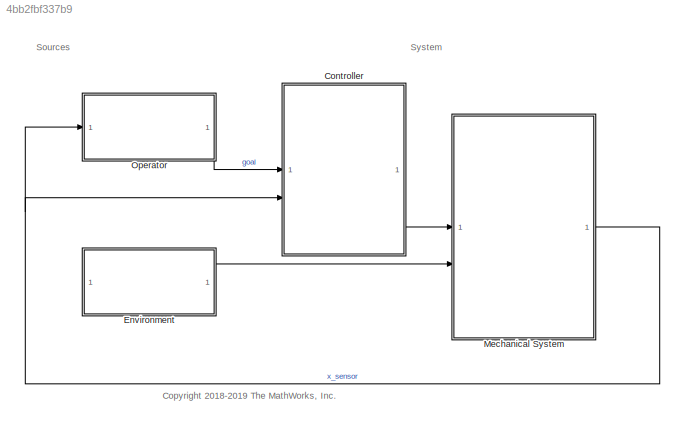
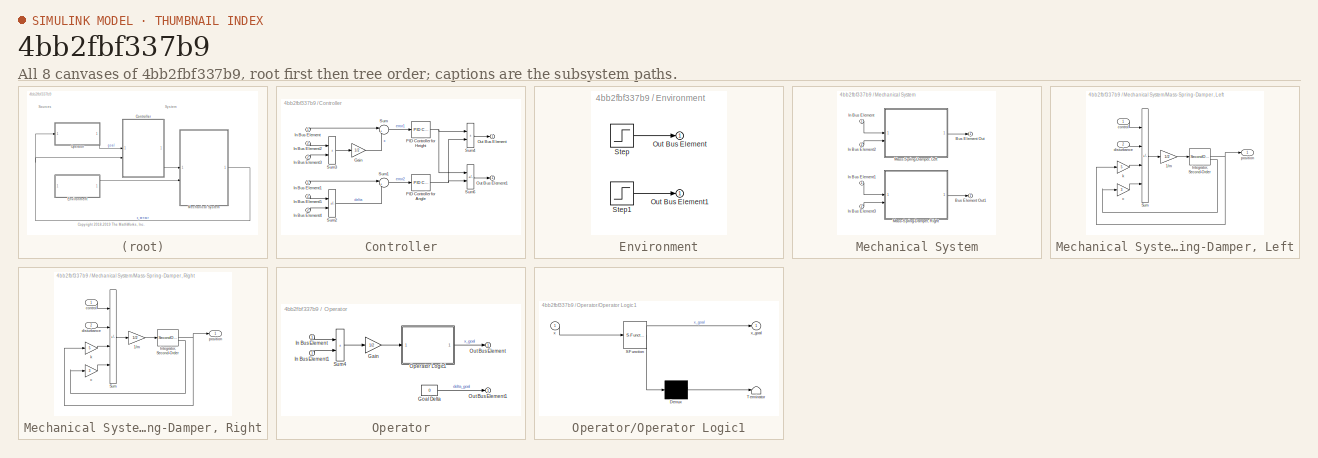
[diagram: thumbnail index - all 8 canvases of the model, root first then tree order]
MODEL slx_4bb2fbf337b9
KIND model
CONFIG AbsTol = auto
CONFIG EnableMultiTasking = off
CONFIG FixedStep = auto
CONFIG MaxStep = auto
CONFIG MinStep = auto
CONFIG RelTol = 1e-3
CONFIG SampleTimeConstraint = Unconstrained
CONFIG SolverName = VariableStepAuto
CONFIG StartTime = 0.0
CONFIG StopTime = 30
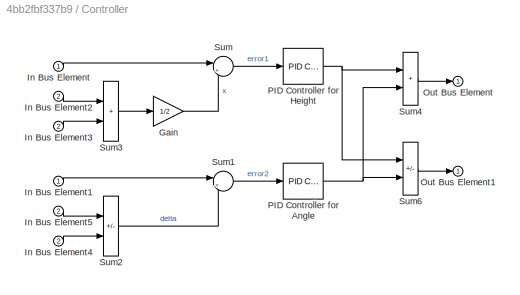
BLOCK [SubSystem] Controller
  TreatAsAtomicUnit = on
BLOCK [Gain] Controller/Gain
  Gain = 1/2
BLOCK [Inport] Controller/In Bus Element
BLOCK [Inport] Controller/In Bus Element1
BLOCK [Inport] Controller/In Bus Element2
  Port = 2
BLOCK [Inport] Controller/In Bus Element3
  Port = 2
BLOCK [Inport] Controller/In Bus Element4
  Port = 2
BLOCK [Inport] Controller/In Bus Element5
  Port = 2
BLOCK [Outport] Controller/Out Bus Element
BLOCK [Outport] Controller/Out Bus Element1
BLOCK [Reference] Controller/PID Controller for Angle  REF=slpidlib/PID Controller
  SourceBlock = slpidlib/PID Controller
  SourceType = PID 1dof
BLOCK [Reference] Controller/PID Controller for Height  REF=slpidlib/PID Controller
  SourceBlock = slpidlib/PID Controller
  SourceType = PID 1dof
BLOCK [Sum] Controller/Sum
  Inputs = |+-
BLOCK [Sum] Controller/Sum1
  Inputs = |+-
BLOCK [Sum] Controller/Sum2
  IconShape = rectangular
  Inputs = +-
BLOCK [Sum] Controller/Sum3
  IconShape = rectangular
BLOCK [Sum] Controller/Sum4
  IconShape = rectangular
BLOCK [Sum] Controller/Sum6
  IconShape = rectangular
  Inputs = +-
BLOCK [SubSystem] Environment
BLOCK [Outport] Environment/Out Bus Element
  VectorParamsAs1DForOutWhenUnconnected = off
BLOCK [Outport] Environment/Out Bus Element1
  VectorParamsAs1DForOutWhenUnconnected = off
BLOCK [Step] Environment/Step
  After = 10
  SampleTime = 0
  Time = 10
BLOCK [Step] Environment/Step1
  After = 10
  SampleTime = 0
  Time = 20
BLOCK [SubSystem] Mechanical System
BLOCK [Outport] Mechanical System/Bus Element Out
  VectorParamsAs1DForOutWhenUnconnected = off
BLOCK [Outport] Mechanical System/Bus Element Out1
  VectorParamsAs1DForOutWhenUnconnected = off
BLOCK [Inport] Mechanical System/In Bus Element
BLOCK [Inport] Mechanical System/In Bus Element1
BLOCK [Inport] Mechanical System/In Bus Element2
  Port = 2
BLOCK [Inport] Mechanical System/In Bus Element3
  Port = 2
BLOCK [SubSystem] Mechanical System/Mass-Spring-Damper, Left
BLOCK [Gain] Mechanical System/Mass-Spring-Damper, Left/1//m
  Gain = 1/2
BLOCK [SecondOrderIntegrator] Mechanical System/Mass-Spring-Damper, Left/Integrator, Second-Order
BLOCK [Sum] Mechanical System/Mass-Spring-Damper, Left/Sum
  IconShape = rectangular
  Inputs = ++--
BLOCK [Gain] Mechanical System/Mass-Spring-Damper, Left/c
  Gain = 3
BLOCK [Inport] Mechanical System/Mass-Spring-Damper, Left/control
BLOCK [Inport] Mechanical System/Mass-Spring-Damper, Left/disturbance
  Port = 2
BLOCK [Gain] Mechanical System/Mass-Spring-Damper, Left/k
  Gain = 5
BLOCK [Outport] Mechanical System/Mass-Spring-Damper, Left/position
  VectorParamsAs1DForOutWhenUnconnected = off
BLOCK [SubSystem] Mechanical System/Mass-Spring-Damper, Right
BLOCK [Gain] Mechanical System/Mass-Spring-Damper, Right/1//m
  Gain = 1/2
BLOCK [SecondOrderIntegrator] Mechanical System/Mass-Spring-Damper, Right/Integrator, Second-Order
BLOCK [Sum] Mechanical System/Mass-Spring-Damper, Right/Sum
  IconShape = rectangular
  Inputs = ++--
BLOCK [Gain] Mechanical System/Mass-Spring-Damper, Right/c
  Gain = 3
BLOCK [Inport] Mechanical System/Mass-Spring-Damper, Right/control
BLOCK [Inport] Mechanical System/Mass-Spring-Damper, Right/disturbance
  Port = 2
BLOCK [Gain] Mechanical System/Mass-Spring-Damper, Right/k
  Gain = 5
BLOCK [Outport] Mechanical System/Mass-Spring-Damper, Right/position
  VectorParamsAs1DForOutWhenUnconnected = off
BLOCK [SubSystem] Operator
BLOCK [Gain] Operator/Gain
  Gain = 1/2
BLOCK [Constant] Operator/Goal Delta
  Value = 0
BLOCK [Inport] Operator/In Bus Element
BLOCK [Inport] Operator/In Bus Element1
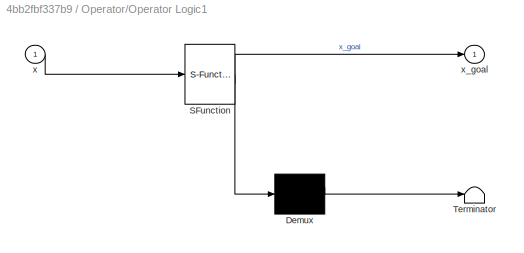
BLOCK [SubSystem] Operator/Operator Logic1
  ErrorFcn = Stateflow.Translate.translate
  PermitHierarchicalResolution = ExplicitOnly
  SFBlockType = Chart
  TreatAsAtomicUnit = on
BLOCK [Demux] Operator/Operator Logic1/ Demux 
  Outputs = 1
BLOCK [S-Function] Operator/Operator Logic1/ SFunction 
  EnableBusSupport = off
  FunctionName = sf_sfun
  PortCounts = [1 2]
  SFcnIsStateOwnerBlock = off
  SFunctionDeploymentMode = off
  Tag = Stateflow S-Function 1
BLOCK [Terminator] Operator/Operator Logic1/ Terminator 
BLOCK [Inport] Operator/Operator Logic1/x
BLOCK [Outport] Operator/Operator Logic1/x_goal
  VectorParamsAs1DForOutWhenUnconnected = off
BLOCK [Outport] Operator/Out Bus Element
  VectorParamsAs1DForOutWhenUnconnected = off
BLOCK [Outport] Operator/Out Bus Element1
  VectorParamsAs1DForOutWhenUnconnected = off
BLOCK [Sum] Operator/Sum4
  IconShape = rectangular
ANNOTATION (root): <copyright redacted>
ANNOTATION (root): Sources
ANNOTATION (root): System
LINE Controller/Gain:1 -> Controller/Sum:2
LINE Controller/In Bus Element1:1 -> Controller/Sum1:1
LINE Controller/In Bus Element2:1 -> Controller/Sum3:1
LINE Controller/In Bus Element3:1 -> Controller/Sum3:2
LINE Controller/In Bus Element4:1 -> Controller/Sum2:2
LINE Controller/In Bus Element5:1 -> Controller/Sum2:1
LINE Controller/In Bus Element:1 -> Controller/Sum:1
NET Controller/PID Controller for Angle:1 -> Controller/Sum4:2, Controller/Sum6:2
NET Controller/PID Controller for Height:1 -> Controller/Sum4:1, Controller/Sum6:1
LINE Controller/Sum1:1 -> Controller/PID Controller for Angle:1
LINE Controller/Sum2:1 -> Controller/Sum1:2
LINE Controller/Sum3:1 -> Controller/Gain:1
LINE Controller/Sum4:1 -> Controller/Out Bus Element:1
LINE Controller/Sum6:1 -> Controller/Out Bus Element1:1
LINE Controller/Sum:1 -> Controller/PID Controller for Height:1
LINE Controller:1 -> Mechanical System:1
LINE Environment/Step1:1 -> Environment/Out Bus Element1:1
LINE Environment/Step:1 -> Environment/Out Bus Element:1
LINE Environment:1 -> Mechanical System:2
LINE Mechanical System/In Bus Element1:1 -> Mechanical System/Mass-Spring-Damper, Right:1
LINE Mechanical System/In Bus Element2:1 -> Mechanical System/Mass-Spring-Damper, Left:2
LINE Mechanical System/In Bus Element3:1 -> Mechanical System/Mass-Spring-Damper, Right:2
LINE Mechanical System/In Bus Element:1 -> Mechanical System/Mass-Spring-Damper, Left:1
LINE Mechanical System/Mass-Spring-Damper, Left/1//m:1 -> Mechanical System/Mass-Spring-Damper, Left/Integrator, Second-Order:1
NET Mechanical System/Mass-Spring-Damper, Left/Integrator, Second-Order:1 -> Mechanical System/Mass-Spring-Damper, Left/k:1, Mechanical System/Mass-Spring-Damper, Left/position:1
LINE Mechanical System/Mass-Spring-Damper, Left/Integrator, Second-Order:2 -> Mechanical System/Mass-Spring-Damper, Left/c:1
LINE Mechanical System/Mass-Spring-Damper, Left/Sum:1 -> Mechanical System/Mass-Spring-Damper, Left/1//m:1
LINE Mechanical System/Mass-Spring-Damper, Left/c:1 -> Mechanical System/Mass-Spring-Damper, Left/Sum:4
LINE Mechanical System/Mass-Spring-Damper, Left/control:1 -> Mechanical System/Mass-Spring-Damper, Left/Sum:1
LINE Mechanical System/Mass-Spring-Damper, Left/disturbance:1 -> Mechanical System/Mass-Spring-Damper, Left/Sum:2
LINE Mechanical System/Mass-Spring-Damper, Left/k:1 -> Mechanical System/Mass-Spring-Damper, Left/Sum:3
LINE Mechanical System/Mass-Spring-Damper, Left:1 -> Mechanical System/Bus Element Out:1
LINE Mechanical System/Mass-Spring-Damper, Right/1//m:1 -> Mechanical System/Mass-Spring-Damper, Right/Integrator, Second-Order:1
NET Mechanical System/Mass-Spring-Damper, Right/Integrator, Second-Order:1 -> Mechanical System/Mass-Spring-Damper, Right/k:1, Mechanical System/Mass-Spring-Damper, Right/position:1
LINE Mechanical System/Mass-Spring-Damper, Right/Integrator, Second-Order:2 -> Mechanical System/Mass-Spring-Damper, Right/c:1
LINE Mechanical System/Mass-Spring-Damper, Right/Sum:1 -> Mechanical System/Mass-Spring-Damper, Right/1//m:1
LINE Mechanical System/Mass-Spring-Damper, Right/c:1 -> Mechanical System/Mass-Spring-Damper, Right/Sum:4
LINE Mechanical System/Mass-Spring-Damper, Right/control:1 -> Mechanical System/Mass-Spring-Damper, Right/Sum:1
LINE Mechanical System/Mass-Spring-Damper, Right/disturbance:1 -> Mechanical System/Mass-Spring-Damper, Right/Sum:2
LINE Mechanical System/Mass-Spring-Damper, Right/k:1 -> Mechanical System/Mass-Spring-Damper, Right/Sum:3
LINE Mechanical System/Mass-Spring-Damper, Right:1 -> Mechanical System/Bus Element Out1:1
NET Mechanical System:1 -> Controller:2, Operator:1
LINE Operator/Gain:1 -> Operator/Operator Logic1:1
LINE Operator/Goal Delta:1 -> Operator/Out Bus Element1:1
LINE Operator/In Bus Element1:1 -> Operator/Sum4:2
LINE Operator/In Bus Element:1 -> Operator/Sum4:1
LINE Operator/Operator Logic1:1 -> Operator/Out Bus Element:1
LINE Operator/Sum4:1 -> Operator/Gain:1
LINE Operator:1 -> Controller:1
note: NET lines group one-source signal fan-out (src -> all destinations, sorted); 1:1 wires keep LINE
CHART Operator/Operator Logic1 states=3 transitions=3
  STATE_LABEL 'wait\nentry: x_goal = 0;'
  STATE_LABEL 'FirstOperation\nentry: x_goal = 2;'
  STATE_LABEL 'SecondOperation\nentry: x_goal = 1;'
CHART  states=0 transitions=0
